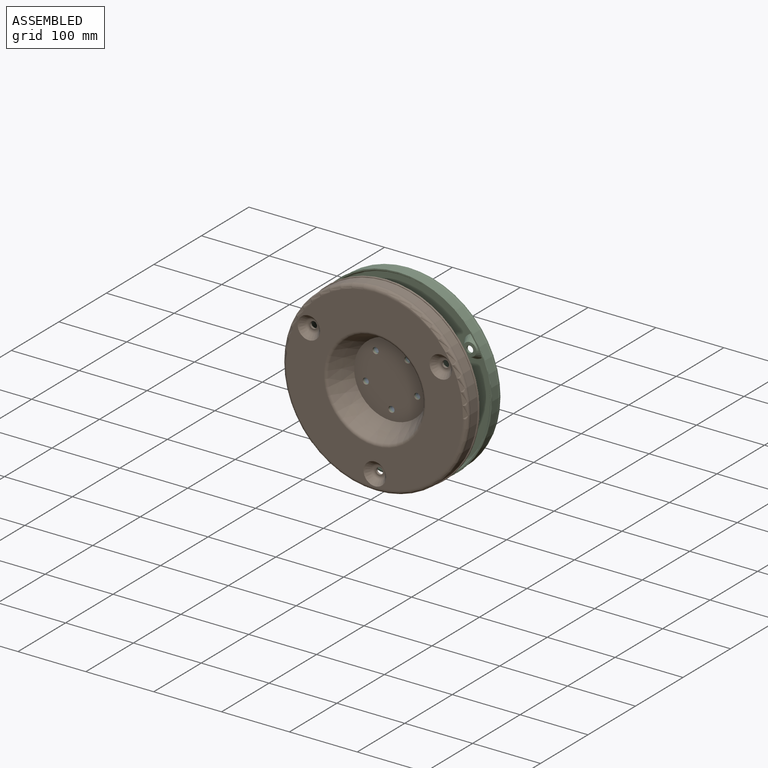
[diagram: assembled view]
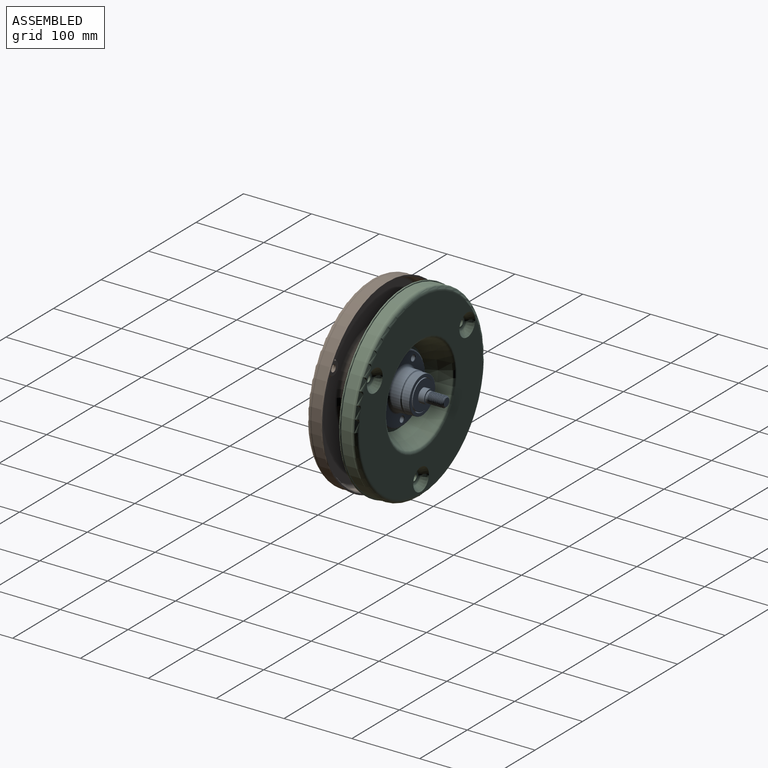
[diagram: assembled view, second angle]
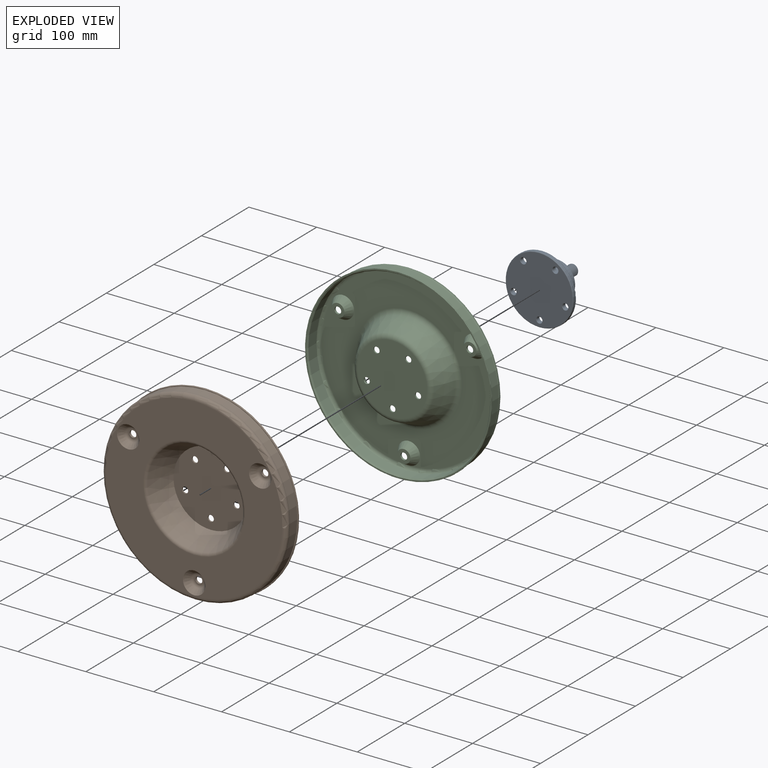
[diagram: exploded view]
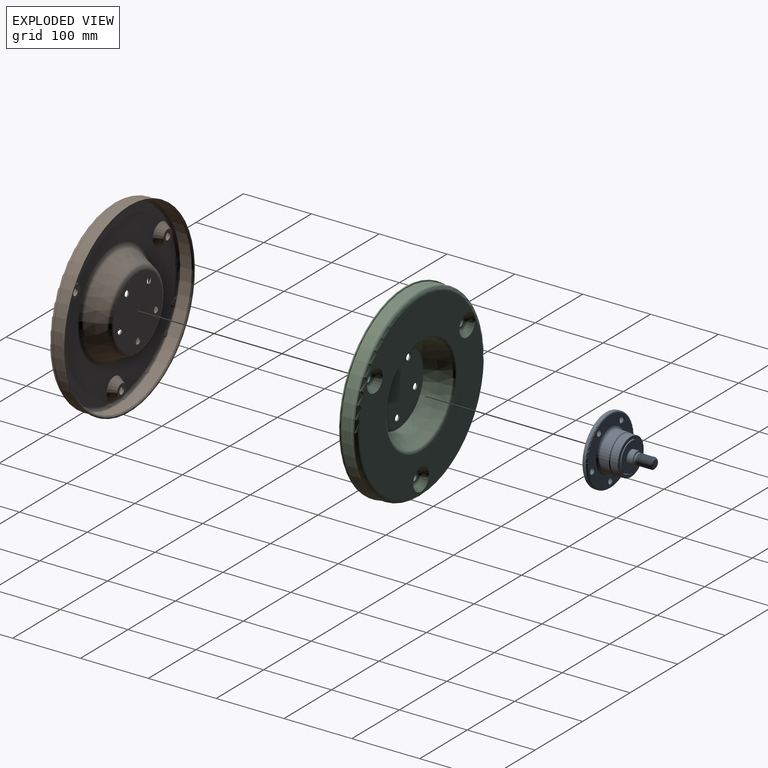
[diagram: exploded view, second angle]
ASSEMBLY  parts=3 mates=3
PART A: 57 faces, bbox 108.3x72.6x108.3 mm
  f0: cylinder r=9.95mm len=19.9mm, axis (0,-1,0), area 490.3mm2, adj f1,f13,f39
  f1: plane 19.9x18.3mm, normal (0,1,0), area 98.2mm2, adj f0,f2,f39
  f2: cylinder r=8mm len=16mm, axis (0,-1,0), area 142.1mm2, adj f1,f3,f33,f34,f35,f37
  f3: cylinder r=8mm len=16mm, axis (0,-1,0), area 12.5mm2, adj f2,f4,f32,f33
  f4: cylinder r=8mm len=16mm, axis (0,-1,0), area 12.5mm2, adj f3,f5,f32,f33
  f5: cylinder r=8mm len=16mm, axis (0,-1,0), area 12.6mm2, adj f4,f6,f32,f33
  f6: cylinder r=8mm len=16mm, axis (0,-1,0), area 12.6mm2, adj f5,f7,f32,f33
  f7: cylinder r=8mm len=16mm, axis (0,-1,0), area 12.6mm2, adj f6,f8,f32,f33
  f8: cylinder r=8mm len=16mm, axis (0,-1,0), area 12.6mm2, adj f7,f9,f32,f33
  f9: cylinder r=8mm len=16mm, axis (0,-1,0), area 12.6mm2, adj f8,f10,f32,f33
  f10: cylinder r=8mm len=16mm, axis (0,-1,0), area 12.5mm2, adj f9,f11,f32,f33
  f11: cylinder r=8mm len=16mm, axis (0,-1,0), area 12.5mm2, adj f10,f12,f32,f33
  f12: cylinder r=8mm len=16mm, axis (0,-1,0), area 7mm2, adj f11,f32,f33,f38
  f13: plane 20.1x20.1mm, normal (0,1,0), area 18mm2, adj f0,f14,f39
  f14: cylinder r=10.05mm len=20.1mm, axis (0,-1,0), area 50.5mm2, adj f13,f15
  f15: plane 43x43mm, normal (0,1,0), area 1134.9mm2, adj f14,f16
  f16: cylinder r=21.5mm len=43mm, axis (0,-1,0), area 3080mm2, adj f15,f17
  f17: plane 44.8x44.8mm, normal (0,1,0), area 124.1mm2, adj f16,f18
  f18: cylinder r=22.4mm len=44.8mm, axis (0,-1,0), area 3096.4mm2, adj f17,f19
  f19: plane 53.3x53.3mm, normal (0,1,0), area 654.9mm2, adj f18,f30
  f20: cylinder r=27.15mm len=54.3mm, axis (0,-1,0), area 1577.9mm2, adj f27,f30
  f21: cylinder r=26.88mm len=53.75mm, axis (0,-1,0), area 2.6mm2, adj f27,f28
  f22: cylinder r=28mm len=56mm, axis (0,-1,0), area 2331.1mm2, adj f28,f29
  f23: plane 96x96mm, normal (0,1,0), area 3666.8mm2, adj f29,f45,f47,f49,f51,f54,f55
  f24: cylinder r=50mm len=100mm, axis (0,-1,0), area 1256.6mm2, adj f55,f56
  f25: plane 98x98mm, normal (0,-1,0), area 7188.6mm2, adj f46,f48,f50,f52,f53,f56
  f26: plane 12x12mm, normal (0,1,0), area 113.1mm2, adj f38
  f27: torus R=29.07mm, axis (0,1,0), area 188.4mm2, adj f20,f21
  f28: torus R=29.07mm, axis (0,-1,0), area 399.6mm2, adj f21,f22
  f29: torus R=32mm, axis (0,-1,0), area 1162.8mm2, adj f22,f23
  f30: torus R=26.65mm, axis (0,1,0), area 133.1mm2, adj f19,f20
  f31: bspline ~22.17x15.98mm, area 256.1mm2, adj f32,f33,f36,f38
  f32: bspline ~21.63x18.48mm, area 588.6mm2, adj f3,f4,f5,f6,f7,f8,f9,f10
  f33: bspline ~22.29x18.48mm, area 622.6mm2, adj f2,f3,f4,f5,f6,f7,f8,f9
  f34: plane 0.61x0.2mm, normal (-1,0,0), area 0.1mm2, adj f2,f35,f36,f37
  f35: bspline ~17.56x17.13mm, area 32.3mm2, adj f2,f32,f34,f36
  f36: bspline ~15.39x14.94mm, area 25.9mm2, adj f31,f34,f35,f37
  f37: bspline ~17.56x17.13mm, area 32.3mm2, adj f2,f33,f34,f36
  f38: cone r=8mm half-angle=45deg, axis (0,-1,0), area 83.3mm2, adj f12,f26,f31,f32,f33
  f39: plane 10.82x9.6mm, normal (0,0,1), area 103.9mm2, adj f0,f1,f13
  f40: cylinder r=4.25mm len=8.5mm, axis (0,1,0), area 160.2mm2, adj f45,f46
  f41: cylinder r=4.25mm len=8.5mm, axis (0,1,0), area 160.2mm2, adj f47,f52
  f42: cylinder r=4.25mm len=8.5mm, axis (0,1,0), area 160.2mm2, adj f51,f53
  f43: cylinder r=4.25mm len=8.5mm, axis (0,1,0), area 160.2mm2, adj f48,f54
  f44: cylinder r=4.25mm len=8.5mm, axis (0,1,0), area 160.2mm2, adj f49,f50
  f45: cone r=4.25mm half-angle=45deg, axis (0,1,0), area 20mm2, adj f23,f40
  f46: cone r=4.25mm half-angle=45deg, axis (0,-1,0), area 20mm2, adj f25,f40
  f47: cone r=4.25mm half-angle=45deg, axis (0,1,0), area 20mm2, adj f23,f41
  f48: cone r=4.25mm half-angle=45deg, axis (0,-1,0), area 20mm2, adj f25,f43
  f49: cone r=4.25mm half-angle=45deg, axis (0,1,0), area 20mm2, adj f23,f44
  f50: cone r=4.25mm half-angle=45deg, axis (0,-1,0), area 20mm2, adj f25,f44
  f51: cone r=4.25mm half-angle=45deg, axis (0,1,0), area 20mm2, adj f23,f42
  f52: cone r=4.25mm half-angle=45deg, axis (0,-1,0), area 20mm2, adj f25,f41
  f53: cone r=4.25mm half-angle=45deg, axis (0,-1,0), area 20mm2, adj f25,f42
  f54: cone r=4.25mm half-angle=45deg, axis (0,1,0), area 20mm2, adj f23,f43
  f55: torus R=48mm, axis (0,-1,0), area 972.6mm2, adj f23,f24
  f56: torus R=49mm, axis (0,-1,0), area 489.9mm2, adj f24,f25
PART B: 43 faces, bbox 295.5x37x295.5 mm
  f0: plane 275x275mm, normal (0,1,0), area 1715.3mm2, adj f1,f12
  f1: cylinder r=137.5mm len=275mm, axis (0,-1,0), area 1295.9mm2, adj f0,f16
  f2: plane 274x274mm, normal (0,-1,0), area 857.7mm2, adj f3,f16
  f3: cylinder r=136mm len=272mm, axis (0,-1,0), area 12817.7mm2, adj f2,f15
  f4: plane 260x260mm, normal (0,-1,0), area 32787.3mm2, adj f13,f17,f27,f29,f31
  f5: cone r=72.02mm half-angle=25.9deg, axis (0,-1,0), area 14126.9mm2, adj f6,f17
  f6: plane 110x110mm, normal (0,-1,0), area 9185.2mm2, adj f5,f35,f36,f37,f38,f39
  f7: plane 102.49x102.49mm, normal (0,1,0), area 7932.1mm2, adj f18,f35,f36,f37,f38,f39
  f8: cone r=73.27mm half-angle=25.9deg, axis (0,-1,0), area 11761.4mm2, adj f18,f19
  f9: plane 257.57x257.57mm, normal (0,1,0), area 30352.5mm2, adj f14,f19,f20,f22,f24
  f10: plane 269x269mm, normal (0,-1,0), area 421.8mm2, adj f11,f14
  f11: cylinder r=134mm len=268mm, axis (0,-1,0), area 14397.3mm2, adj f10,f12
  f12: cone r=134mm half-angle=36.9deg, axis (0,1,0), area 2116.6mm2, adj f0,f11
  f13: torus R=130mm, axis (0,-1,0), area 5770.4mm2, adj f4,f15
  f14: torus R=128.79mm, axis (0,1,0), area 5786mm2, adj f9,f10
  f15: torus R=131.31mm, axis (0,1,0), area 3692mm2, adj f3,f13
  f16: cone r=137mm half-angle=45deg, axis (0,1,0), area 609.8mm2, adj f1,f2
  f17: torus R=75.14mm, axis (0,-1,0), area 2551.6mm2, adj f4,f5
  f18: torus R=51.25mm, axis (0,-1,0), area 3106.8mm2, adj f7,f8
  f19: torus R=78.27mm, axis (0,-1,0), area 4173.5mm2, adj f8,f9
  f20: cone r=17.5mm half-angle=30.8deg, axis (0,-1,0), area 1048.4mm2, adj f9,f21
  f21: plane 19.5x19.5mm, normal (0,1,0), area 220.1mm2, adj f20,f34
  f22: cone r=17.5mm half-angle=30.8deg, axis (0,-1,0), area 1048.4mm2, adj f9,f23
  f23: plane 19.5x19.5mm, normal (0,1,0), area 220.1mm2, adj f22,f32
  f24: cone r=17.5mm half-angle=30.8deg, axis (0,-1,0), area 1048.4mm2, adj f9,f25
  f25: plane 19.5x19.5mm, normal (0,1,0), area 220.1mm2, adj f24,f33
  f26: plane 12.6x12.6mm, normal (0,-1,0), area 46.1mm2, adj f34,f42
  f27: cone r=16.5mm half-angle=37.8deg, axis (0,-1,0), area 857.3mm2, adj f4,f42
  f28: plane 12.6x12.6mm, normal (0,-1,0), area 46.1mm2, adj f33,f41
  f29: cone r=16.5mm half-angle=37.8deg, axis (0,-1,0), area 857.3mm2, adj f4,f41
  f30: plane 12.6x12.6mm, normal (0,-1,0), area 46.1mm2, adj f32,f40
  f31: cone r=16.5mm half-angle=37.8deg, axis (0,-1,0), area 857.3mm2, adj f4,f40
  f32: cylinder r=5mm len=10mm, axis (0,-1,0), area 94.2mm2, adj f23,f30
  f33: cylinder r=5mm len=10mm, axis (0,-1,0), area 94.2mm2, adj f25,f28
  f34: cylinder r=5mm len=10mm, axis (0,-1,0), area 94.2mm2, adj f21,f26
  f35: cylinder r=4.5mm len=9mm, axis (0,-1,0), area 56.5mm2, adj f6,f7
  f36: cylinder r=4.5mm len=9mm, axis (0,-1,0), area 56.5mm2, adj f6,f7
  f37: cylinder r=4.5mm len=9mm, axis (0,-1,0), area 56.5mm2, adj f6,f7
  f38: cylinder r=4.5mm len=9mm, axis (0,-1,0), area 56.5mm2, adj f6,f7
  f39: cylinder r=4.5mm len=9mm, axis (0,-1,0), area 56.5mm2, adj f6,f7
  f40: torus R=6.3mm, axis (0,-1,0), area 241.2mm2, adj f30,f31
  f41: torus R=6.3mm, axis (0,-1,0), area 241.2mm2, adj f28,f29
  f42: torus R=6.3mm, axis (0,-1,0), area 241.2mm2, adj f26,f27
PART C: same geometry as B
PLACE A rot(axis=(0,1,0),180deg) t=(0.16,347,0.53)mm
PLACE B rot(axis=(0,1,0),180deg) t=(0.16,308,0.18)mm
PLACE C rot(axis=(1,0,0),180deg) t=(0.16,382,0.18)mm
MATE planar C.f1 <-> B.f1  axis (0,-1,0) through (0.16,345,0.18)mm
MATE fastened B.f38 <-> C.f38  axis (0,1,0) through (0.16,345,-39.62)mm
MATE fastened A.f44 <-> C.f38  axis (0,-1,0) through (0.16,347,-39.62)mm
